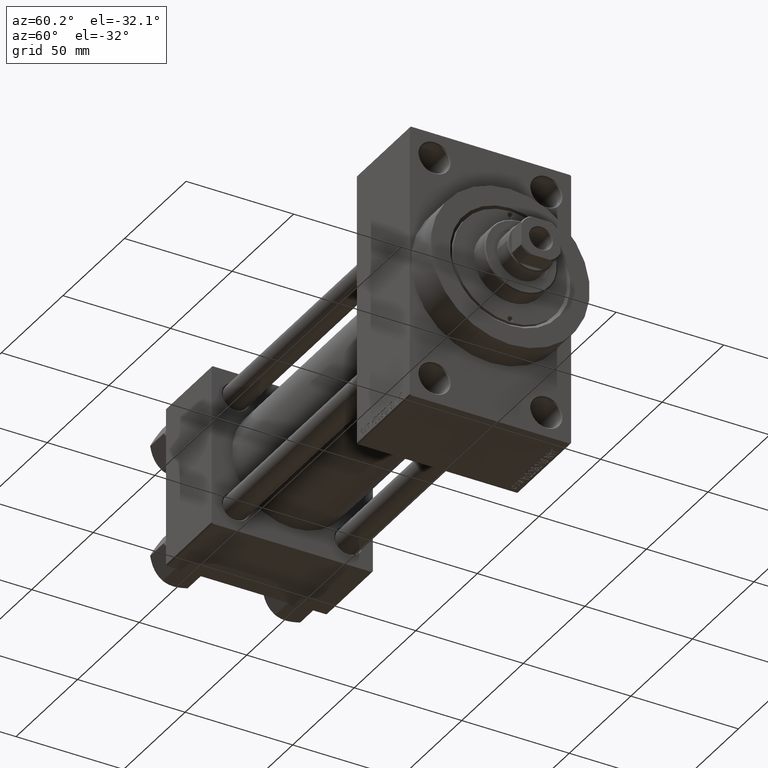
[diagram: clean part render]
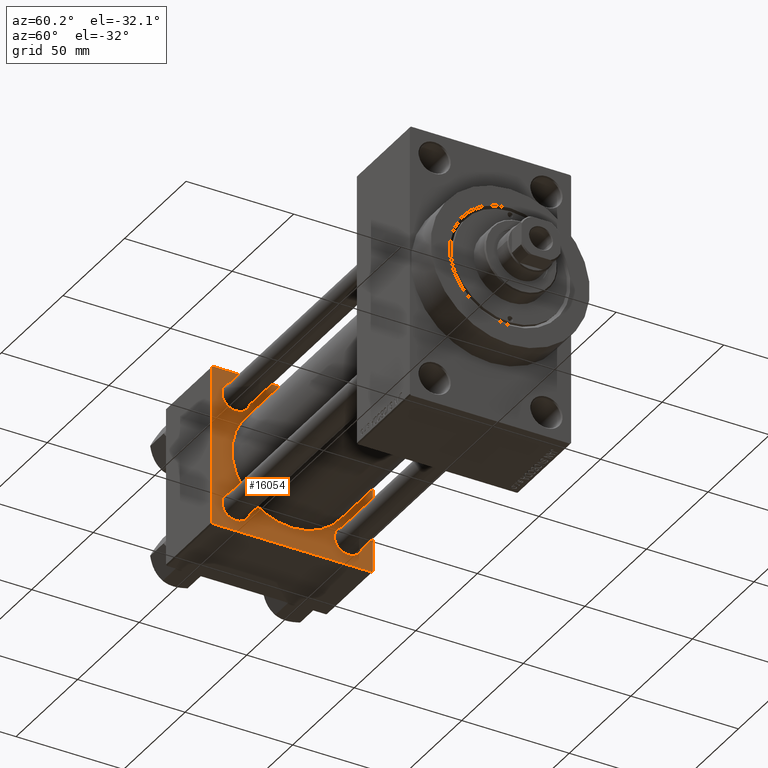
[diagram: same view with one face highlighted and labeled with its STEP entity id]
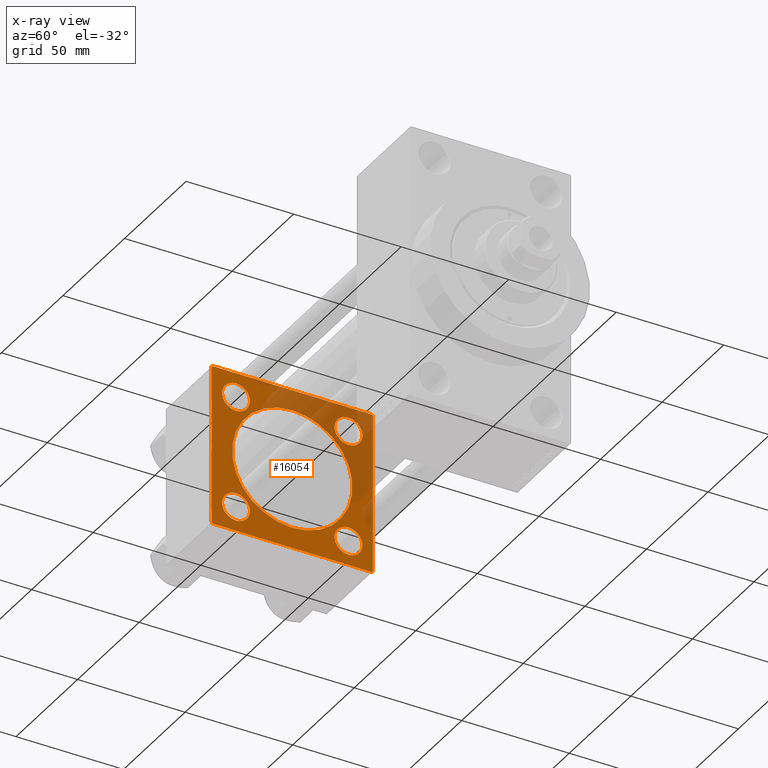
[diagram: x-ray of the same camera — body ghosted, the highlighted face saturated]
A machine part, auxiliary view. The second image highlights one B-rep face of the part: STEP entity #16054.
The next image is the same camera in x-ray: the body ghosted, the highlighted face saturated — about 33% of this face is hidden behind the body in this view.
In plain terms, the highlighted planar face has unit normal (-1, 0, 0).
Its self-contained STEP definition (entity closure, byte-faithful):
#151 = DIRECTION ( 'NONE',  ( 0.000000000000000000, 0.7071067811865524577, -0.7071067811865426878 ) ) ;
#259 = AXIS2_PLACEMENT_3D ( 'NONE', #44998, #26788, #40476 ) ;
#349 = VECTOR ( 'NONE', #13016, 1000.000000000000000 ) ;
#555 = VERTEX_POINT ( 'NONE', #15771 ) ;
#1009 = CARTESIAN_POINT ( 'NONE',  ( 37.00000000000000000, -26.14999999999999147, 32.65000000000001990 ) ) ;
#1055 = ORIENTED_EDGE ( 'NONE', *, *, #36102, .F. ) ;
#1240 = CARTESIAN_POINT ( 'NONE',  ( 37.00000000000000711, -2.602085213965210642E-15, 0.000000000000000000 ) ) ;
#1285 = VECTOR ( 'NONE', #23072, 1000.000000000000114 ) ;
#2715 = FACE_BOUND ( 'NONE', #44713, .T. ) ;
#2988 = DIRECTION ( 'NONE',  ( -1.000000000000000000, 0.000000000000000000, -0.000000000000000000 ) ) ;
#3192 = CARTESIAN_POINT ( 'NONE',  ( 37.00000000000000000, 0.000000000000000000, 0.000000000000000000 ) ) ;
#3249 = CARTESIAN_POINT ( 'NONE',  ( 37.00000000000000000, -37.50000000000000000, -37.00000000000003553 ) ) ;
#3273 = CARTESIAN_POINT ( 'NONE',  ( 37.00000000000000000, -26.14999999999999147, -32.65000000000001279 ) ) ;
#3686 = ORIENTED_EDGE ( 'NONE', *, *, #26989, .F. ) ;
#3999 = AXIS2_PLACEMENT_3D ( 'NONE', #15898, #27156, #27622 ) ;
#5065 = CARTESIAN_POINT ( 'NONE',  ( 37.00000000000000000, -37.50000000000000711, 36.99999999999999289 ) ) ;
#5118 = CARTESIAN_POINT ( 'NONE',  ( 37.00000000000000000, -26.14999999999999147, -19.65000000000000924 ) ) ;
#6095 = CARTESIAN_POINT ( 'NONE',  ( 37.00000000000000000, 37.49999999999999289, 37.50000000000000000 ) ) ;
#6215 = DIRECTION ( 'NONE',  ( 0.000000000000000000, 0.000000000000000000, 1.000000000000000000 ) ) ;
#6245 = CARTESIAN_POINT ( 'NONE',  ( 37.00000000000000000, 26.14999999999999858, 26.15000000000000213 ) ) ;
#6549 = FACE_BOUND ( 'NONE', #15410, .T. ) ;
#6728 = VERTEX_POINT ( 'NONE', #20903 ) ;
#7024 = PLANE ( 'NONE',  #31737 ) ;
#7039 = AXIS2_PLACEMENT_3D ( 'NONE', #6245, #31236, #24019 ) ;
#7053 = LINE ( 'NONE', #10904, #13243 ) ;
#7174 = CIRCLE ( 'NONE', #41645, 6.500000000000002665 ) ;
#7216 = EDGE_CURVE ( 'NONE', #16544, #25104, #34604, .T. ) ;
#7953 = DIRECTION ( 'NONE',  ( 1.000000000000000000, -0.000000000000000000, 0.000000000000000000 ) ) ;
#7978 = AXIS2_PLACEMENT_3D ( 'NONE', #20309, #27040, #23217 ) ;
#8421 = CARTESIAN_POINT ( 'NONE',  ( 37.00000000000000000, 37.49999999999999289, -36.99999999999998579 ) ) ;
#9435 = CARTESIAN_POINT ( 'NONE',  ( 37.00000000000000000, -37.00000000000000711, 37.49999999999999289 ) ) ;
#9456 = CARTESIAN_POINT ( 'NONE',  ( 37.00000000000000711, -2.602085213965210642E-15, 0.000000000000000000 ) ) ;
#10125 = VERTEX_POINT ( 'NONE', #20638 ) ;
#10176 = LINE ( 'NONE', #6095, #10642 ) ;
#10234 = AXIS2_PLACEMENT_3D ( 'NONE', #39089, #42204, #6215 ) ;
#10568 = AXIS2_PLACEMENT_3D ( 'NONE', #9456, #20499, #35128 ) ;
#10642 = VECTOR ( 'NONE', #24350, 1000.000000000000000 ) ;
#10721 = LINE ( 'NONE', #40462, #31021 ) ;
#10904 = CARTESIAN_POINT ( 'NONE',  ( 37.00000000000000000, 37.49999999999999289, 37.50000000000000000 ) ) ;
#11447 = EDGE_CURVE ( 'NONE', #555, #39068, #38430, .T. ) ;
#12662 = CIRCLE ( 'NONE', #7978, 6.500000000000002665 ) ;
#13016 = DIRECTION ( 'NONE',  ( 0.000000000000000000, 9.251858538542971581E-17, -1.000000000000000000 ) ) ;
#13243 = VECTOR ( 'NONE', #43747, 1000.000000000000000 ) ;
#13621 = LINE ( 'NONE', #20819, #27244 ) ;
#13916 = AXIS2_PLACEMENT_3D ( 'NONE', #25308, #24821, #39917 ) ;
#13930 = EDGE_CURVE ( 'NONE', #10125, #40424, #39325, .T. ) ;
#14753 = ORIENTED_EDGE ( 'NONE', *, *, #33568, .T. ) ;
#14973 = CARTESIAN_POINT ( 'NONE',  ( 37.00000000000000000, 37.49999999999999289, -36.99999999999998579 ) ) ;
#15115 = VERTEX_POINT ( 'NONE', #18139 ) ;
#15213 = EDGE_CURVE ( 'NONE', #39068, #555, #7174, .T. ) ;
#15410 = EDGE_LOOP ( 'NONE', ( #17882, #17002 ) ) ;
#15495 = ORIENTED_EDGE ( 'NONE', *, *, #28815, .T. ) ;
#15771 = CARTESIAN_POINT ( 'NONE',  ( 37.00000000000000000, 26.14999999999999858, 19.64999999999999858 ) ) ;
#15898 = CARTESIAN_POINT ( 'NONE',  ( 37.00000000000000000, -26.14999999999999147, -26.15000000000000924 ) ) ;
#16054 = ADVANCED_FACE ( 'NONE', ( #21206, #21915, #28634, #2715, #6549, #36079 ), #7024, .F. ) ;
#16150 = CARTESIAN_POINT ( 'NONE',  ( 37.00000000000000000, -37.50000000000000711, 37.49999999999999289 ) ) ;
#16544 = VERTEX_POINT ( 'NONE', #22639 ) ;
#16807 = EDGE_LOOP ( 'NONE', ( #3686, #23430, #1055, #22887, #30553, #47286, #28319, #24780 ) ) ;
#16847 = CARTESIAN_POINT ( 'NONE',  ( 37.00000000000000000, 26.14999999999999858, -19.65000000000000213 ) ) ;
#17002 = ORIENTED_EDGE ( 'NONE', *, *, #38785, .F. ) ;
#17193 = AXIS2_PLACEMENT_3D ( 'NONE', #1240, #7953, #30522 ) ;
#17437 = ORIENTED_EDGE ( 'NONE', *, *, #11447, .T. ) ;
#17541 = CARTESIAN_POINT ( 'NONE',  ( 37.00000000000000000, 36.99999999999999289, 37.50000000000000000 ) ) ;
#17567 = EDGE_CURVE ( 'NONE', #43794, #6728, #10721, .T. ) ;
#17635 = DIRECTION ( 'NONE',  ( 0.000000000000000000, 0.000000000000000000, 1.000000000000000000 ) ) ;
#17882 = ORIENTED_EDGE ( 'NONE', *, *, #27750, .F. ) ;
#18139 = CARTESIAN_POINT ( 'NONE',  ( 37.00000000000000000, 36.99999999999997868, -37.50000000000000000 ) ) ;
#18842 = DIRECTION ( 'NONE',  ( -1.000000000000000000, 0.000000000000000000, -0.000000000000000000 ) ) ;
#19292 = CARTESIAN_POINT ( 'NONE',  ( 37.00000000000000711, 8.269258236473784371E-16, -28.00000000000000000 ) ) ;
#19494 = VECTOR ( 'NONE', #23133, 1000.000000000000114 ) ;
#20161 = EDGE_CURVE ( 'NONE', #20555, #40679, #13621, .T. ) ;
#20309 = CARTESIAN_POINT ( 'NONE',  ( 37.00000000000000000, -26.14999999999999147, -26.15000000000000924 ) ) ;
#20487 = VECTOR ( 'NONE', #40827, 1000.000000000000000 ) ;
#20499 = DIRECTION ( 'NONE',  ( 1.000000000000000000, -0.000000000000000000, 0.000000000000000000 ) ) ;
#20555 = VERTEX_POINT ( 'NONE', #32951 ) ;
#20638 = CARTESIAN_POINT ( 'NONE',  ( 37.00000000000000000, -26.14999999999999147, 19.65000000000000213 ) ) ;
#20819 = CARTESIAN_POINT ( 'NONE',  ( 37.00000000000000000, 36.99999999999999289, 37.50000000000000000 ) ) ;
#20903 = CARTESIAN_POINT ( 'NONE',  ( 37.00000000000000000, -37.00000000000002132, -37.50000000000000711 ) ) ;
#21206 = FACE_BOUND ( 'NONE', #24623, .T. ) ;
#21237 = CARTESIAN_POINT ( 'NONE',  ( 37.00000000000000000, -26.14999999999999147, 26.15000000000000924 ) ) ;
#21915 = FACE_BOUND ( 'NONE', #28759, .T. ) ;
#22639 = CARTESIAN_POINT ( 'NONE',  ( 37.00000000000000000, 26.14999999999999858, -32.65000000000000568 ) ) ;
#22887 = ORIENTED_EDGE ( 'NONE', *, *, #20161, .T. ) ;
#23072 = DIRECTION ( 'NONE',  ( -0.000000000000000000, 0.7071067811865474617, 0.7071067811865474617 ) ) ;
#23133 = DIRECTION ( 'NONE',  ( -0.000000000000000000, -0.7071067811865474617, -0.7071067811865474617 ) ) ;
#23217 = DIRECTION ( 'NONE',  ( 0.000000000000000000, 0.000000000000000000, 1.000000000000000000 ) ) ;
#23430 = ORIENTED_EDGE ( 'NONE', *, *, #26246, .T. ) ;
#23861 = VERTEX_POINT ( 'NONE', #3273 ) ;
#24019 = DIRECTION ( 'NONE',  ( 0.000000000000000000, 0.000000000000000000, 1.000000000000000000 ) ) ;
#24350 = DIRECTION ( 'NONE',  ( 0.000000000000000000, -1.000000000000000000, -9.251858538542971581E-17 ) ) ;
#24554 = DIRECTION ( 'NONE',  ( -0.000000000000000000, 0.000000000000000000, 1.000000000000000000 ) ) ;
#24623 = EDGE_LOOP ( 'NONE', ( #14753, #29065 ) ) ;
#24780 = ORIENTED_EDGE ( 'NONE', *, *, #17567, .T. ) ;
#24821 = DIRECTION ( 'NONE',  ( -1.000000000000000000, 0.000000000000000000, -0.000000000000000000 ) ) ;
#25104 = VERTEX_POINT ( 'NONE', #16847 ) ;
#25308 = CARTESIAN_POINT ( 'NONE',  ( 37.00000000000000000, 26.14999999999999858, -26.15000000000000213 ) ) ;
#25984 = VERTEX_POINT ( 'NONE', #19292 ) ;
#26211 = CARTESIAN_POINT ( 'NONE',  ( 37.00000000000000000, 37.49999999999999289, -37.50000000000000000 ) ) ;
#26246 = EDGE_CURVE ( 'NONE', #15115, #30707, #33637, .T. ) ;
#26731 = VERTEX_POINT ( 'NONE', #30799 ) ;
#26788 = DIRECTION ( 'NONE',  ( -1.000000000000000000, 0.000000000000000000, -0.000000000000000000 ) ) ;
#26989 = EDGE_CURVE ( 'NONE', #15115, #6728, #29585, .T. ) ;
#26992 = CIRCLE ( 'NONE', #3999, 6.500000000000002665 ) ;
#27040 = DIRECTION ( 'NONE',  ( -1.000000000000000000, 0.000000000000000000, -0.000000000000000000 ) ) ;
#27156 = DIRECTION ( 'NONE',  ( -1.000000000000000000, 0.000000000000000000, -0.000000000000000000 ) ) ;
#27229 = ORIENTED_EDGE ( 'NONE', *, *, #13930, .T. ) ;
#27244 = VECTOR ( 'NONE', #28264, 1000.000000000000114 ) ;
#27622 = DIRECTION ( 'NONE',  ( 0.000000000000000000, 0.000000000000000000, 1.000000000000000000 ) ) ;
#27750 = EDGE_CURVE ( 'NONE', #26731, #25984, #47335, .T. ) ;
#28108 = ORIENTED_EDGE ( 'NONE', *, *, #15213, .T. ) ;
#28264 = DIRECTION ( 'NONE',  ( 0.000000000000000000, -0.7071067811865474617, 0.7071067811865474617 ) ) ;
#28319 = ORIENTED_EDGE ( 'NONE', *, *, #38559, .T. ) ;
#28634 = FACE_BOUND ( 'NONE', #38398, .T. ) ;
#28759 = EDGE_LOOP ( 'NONE', ( #44469, #30410 ) ) ;
#28815 = EDGE_CURVE ( 'NONE', #40424, #10125, #32022, .T. ) ;
#29065 = ORIENTED_EDGE ( 'NONE', *, *, #41293, .T. ) ;
#29585 = LINE ( 'NONE', #26211, #20487 ) ;
#29653 = DIRECTION ( 'NONE',  ( 0.000000000000000000, 0.000000000000000000, 1.000000000000000000 ) ) ;
#30410 = ORIENTED_EDGE ( 'NONE', *, *, #37358, .T. ) ;
#30522 = DIRECTION ( 'NONE',  ( 0.000000000000000000, 0.000000000000000000, 1.000000000000000000 ) ) ;
#30553 = ORIENTED_EDGE ( 'NONE', *, *, #30686, .T. ) ;
#30578 = CARTESIAN_POINT ( 'NONE',  ( 37.00000000000000000, -37.50000000000000711, 36.99999999999999289 ) ) ;
#30686 = EDGE_CURVE ( 'NONE', #40679, #44064, #10176, .T. ) ;
#30707 = VERTEX_POINT ( 'NONE', #14973 ) ;
#30799 = CARTESIAN_POINT ( 'NONE',  ( 37.00000000000000711, -2.602085213965210642E-15, 28.00000000000000000 ) ) ;
#30929 = CIRCLE ( 'NONE', #10234, 6.500000000000002665 ) ;
#31021 = VECTOR ( 'NONE', #151, 1000.000000000000000 ) ;
#31236 = DIRECTION ( 'NONE',  ( -1.000000000000000000, 0.000000000000000000, -0.000000000000000000 ) ) ;
#31737 = AXIS2_PLACEMENT_3D ( 'NONE', #3192, #42759, #24554 ) ;
#32022 = CIRCLE ( 'NONE', #35852, 6.500000000000008882 ) ;
#32951 = CARTESIAN_POINT ( 'NONE',  ( 37.00000000000000000, 37.49999999999999289, 37.00000000000000000 ) ) ;
#33303 = CIRCLE ( 'NONE', #17193, 28.00000000000000000 ) ;
#33568 = EDGE_CURVE ( 'NONE', #23861, #38533, #26992, .T. ) ;
#33637 = LINE ( 'NONE', #8421, #1285 ) ;
#33754 = CARTESIAN_POINT ( 'NONE',  ( 37.00000000000000000, 26.14999999999999858, 32.65000000000001279 ) ) ;
#34390 = LINE ( 'NONE', #16150, #349 ) ;
#34604 = CIRCLE ( 'NONE', #13916, 6.500000000000002665 ) ;
#35128 = DIRECTION ( 'NONE',  ( 0.000000000000000000, 0.000000000000000000, 1.000000000000000000 ) ) ;
#35852 = AXIS2_PLACEMENT_3D ( 'NONE', #21237, #2988, #17635 ) ;
#36079 = FACE_OUTER_BOUND ( 'NONE', #16807, .T. ) ;
#36102 = EDGE_CURVE ( 'NONE', #20555, #30707, #7053, .T. ) ;
#37306 = LINE ( 'NONE', #30578, #19494 ) ;
#37358 = EDGE_CURVE ( 'NONE', #25104, #16544, #30929, .T. ) ;
#38169 = EDGE_CURVE ( 'NONE', #44064, #38901, #37306, .T. ) ;
#38398 = EDGE_LOOP ( 'NONE', ( #27229, #15495 ) ) ;
#38430 = CIRCLE ( 'NONE', #7039, 6.500000000000002665 ) ;
#38533 = VERTEX_POINT ( 'NONE', #5118 ) ;
#38559 = EDGE_CURVE ( 'NONE', #38901, #43794, #34390, .T. ) ;
#38785 = EDGE_CURVE ( 'NONE', #25984, #26731, #33303, .T. ) ;
#38901 = VERTEX_POINT ( 'NONE', #5065 ) ;
#39068 = VERTEX_POINT ( 'NONE', #33754 ) ;
#39089 = CARTESIAN_POINT ( 'NONE',  ( 37.00000000000000000, 26.14999999999999858, -26.15000000000000213 ) ) ;
#39325 = CIRCLE ( 'NONE', #259, 6.500000000000008882 ) ;
#39917 = DIRECTION ( 'NONE',  ( 0.000000000000000000, 0.000000000000000000, 1.000000000000000000 ) ) ;
#40424 = VERTEX_POINT ( 'NONE', #1009 ) ;
#40462 = CARTESIAN_POINT ( 'NONE',  ( 37.00000000000000000, -37.00000000000002132, -37.50000000000000711 ) ) ;
#40476 = DIRECTION ( 'NONE',  ( 0.000000000000000000, 0.000000000000000000, 1.000000000000000000 ) ) ;
#40679 = VERTEX_POINT ( 'NONE', #17541 ) ;
#40827 = DIRECTION ( 'NONE',  ( 0.000000000000000000, -1.000000000000000000, -9.251858538542972814E-17 ) ) ;
#41293 = EDGE_CURVE ( 'NONE', #38533, #23861, #12662, .T. ) ;
#41357 = CARTESIAN_POINT ( 'NONE',  ( 37.00000000000000000, 26.14999999999999858, 26.15000000000000213 ) ) ;
#41645 = AXIS2_PLACEMENT_3D ( 'NONE', #41357, #18842, #29653 ) ;
#42204 = DIRECTION ( 'NONE',  ( -1.000000000000000000, 0.000000000000000000, -0.000000000000000000 ) ) ;
#42759 = DIRECTION ( 'NONE',  ( -1.000000000000000000, 0.000000000000000000, -0.000000000000000000 ) ) ;
#43747 = DIRECTION ( 'NONE',  ( 0.000000000000000000, 0.000000000000000000, -1.000000000000000000 ) ) ;
#43794 = VERTEX_POINT ( 'NONE', #3249 ) ;
#44064 = VERTEX_POINT ( 'NONE', #9435 ) ;
#44469 = ORIENTED_EDGE ( 'NONE', *, *, #7216, .T. ) ;
#44713 = EDGE_LOOP ( 'NONE', ( #17437, #28108 ) ) ;
#44998 = CARTESIAN_POINT ( 'NONE',  ( 37.00000000000000000, -26.14999999999999147, 26.15000000000000924 ) ) ;
#47286 = ORIENTED_EDGE ( 'NONE', *, *, #38169, .T. ) ;
#47335 = CIRCLE ( 'NONE', #10568, 28.00000000000000000 ) ;